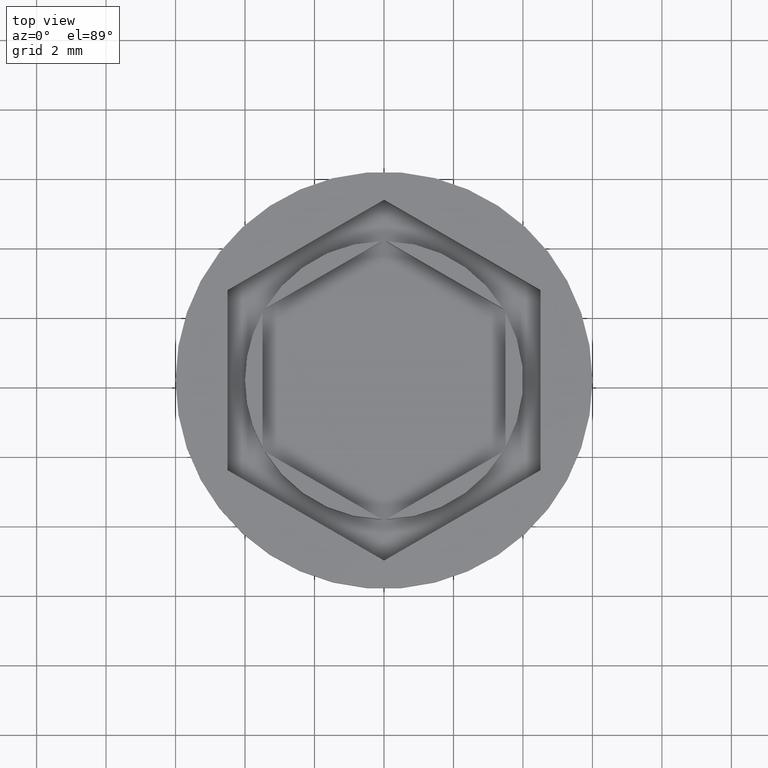
[diagram: clean part render]
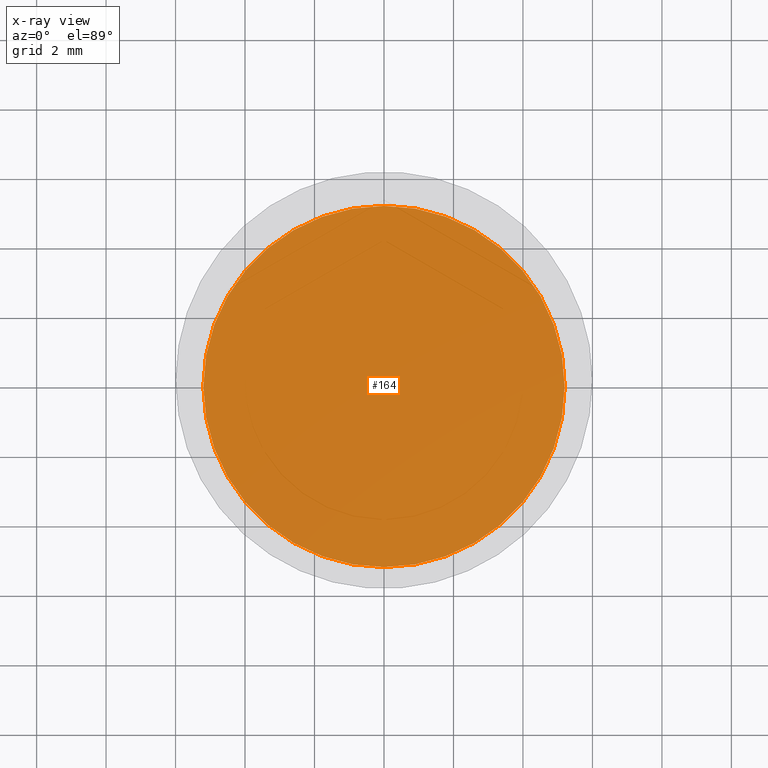
[diagram: x-ray — body ghosted, one internal face saturated and labeled with its STEP entity id]
A machine part, top view, then the same camera in x-ray: the body is ghosted and one INTERNAL B-rep face — a face not visible from any outside direction — is saturated and labeled: STEP entity #164.
In plain terms, the highlighted planar face has unit normal (0, 0, -1).
Its self-contained STEP definition (entity closure, byte-faithful):
#85 = CIRCLE ( 'NONE', #554, 5.200000000000001066 ) ;
#110 = CARTESIAN_POINT ( 'NONE',  ( -5.200000000000001066, 0.000000000000000000, -10.50000000000000178 ) ) ;
#138 = VERTEX_POINT ( 'NONE', #362 ) ;
#164 = ADVANCED_FACE ( 'NONE', ( #1436 ), #1279, .F. ) ;
#173 = AXIS2_PLACEMENT_3D ( 'NONE', #1756, #523, #1906 ) ;
#327 = CIRCLE ( 'NONE', #430, 5.200000000000001066 ) ;
#362 = CARTESIAN_POINT ( 'NONE',  ( 5.200000000000001066, 6.551860375438340681E-16, -10.50000000000000178 ) ) ;
#367 = DIRECTION ( 'NONE',  ( -1.000000000000000000, 0.000000000000000000, 0.000000000000000000 ) ) ;
#430 = AXIS2_PLACEMENT_3D ( 'NONE', #1760, #1285, #367 ) ;
#523 = DIRECTION ( 'NONE',  ( 0.000000000000000000, 0.000000000000000000, -1.000000000000000000 ) ) ;
#554 = AXIS2_PLACEMENT_3D ( 'NONE', #962, #1308, #656 ) ;
#656 = DIRECTION ( 'NONE',  ( -1.000000000000000000, 0.000000000000000000, 0.000000000000000000 ) ) ;
#914 = ORIENTED_EDGE ( 'NONE', *, *, #1879, .T. ) ;
#925 = ORIENTED_EDGE ( 'NONE', *, *, #1231, .T. ) ;
#962 = CARTESIAN_POINT ( 'NONE',  ( 0.000000000000000000, 0.000000000000000000, -10.50000000000000178 ) ) ;
#1091 = VERTEX_POINT ( 'NONE', #110 ) ;
#1231 = EDGE_CURVE ( 'NONE', #138, #1091, #85, .T. ) ;
#1279 = PLANE ( 'NONE',  #173 ) ;
#1285 = DIRECTION ( 'NONE',  ( -0.000000000000000000, -0.000000000000000000, 1.000000000000000000 ) ) ;
#1308 = DIRECTION ( 'NONE',  ( -0.000000000000000000, -0.000000000000000000, 1.000000000000000000 ) ) ;
#1436 = FACE_OUTER_BOUND ( 'NONE', #1991, .T. ) ;
#1756 = CARTESIAN_POINT ( 'NONE',  ( 0.000000000000000000, 0.000000000000000000, -10.50000000000000178 ) ) ;
#1760 = CARTESIAN_POINT ( 'NONE',  ( 0.000000000000000000, 0.000000000000000000, -10.50000000000000178 ) ) ;
#1879 = EDGE_CURVE ( 'NONE', #1091, #138, #327, .T. ) ;
#1906 = DIRECTION ( 'NONE',  ( -1.000000000000000000, 0.000000000000000000, -0.000000000000000000 ) ) ;
#1991 = EDGE_LOOP ( 'NONE', ( #914, #925 ) ) ;